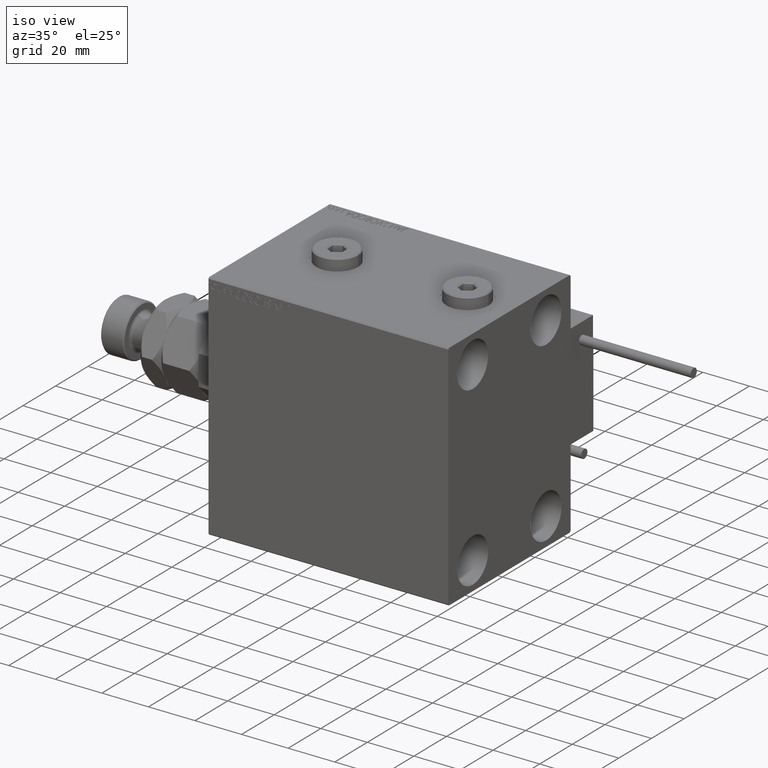
[diagram: clean part render]
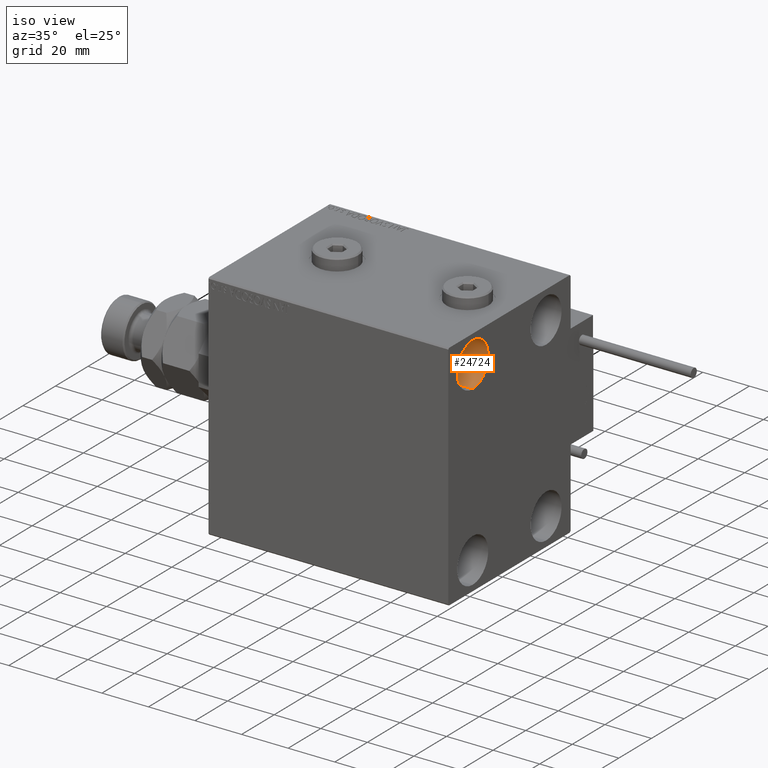
[diagram: same view with one face highlighted and labeled with its STEP entity id]
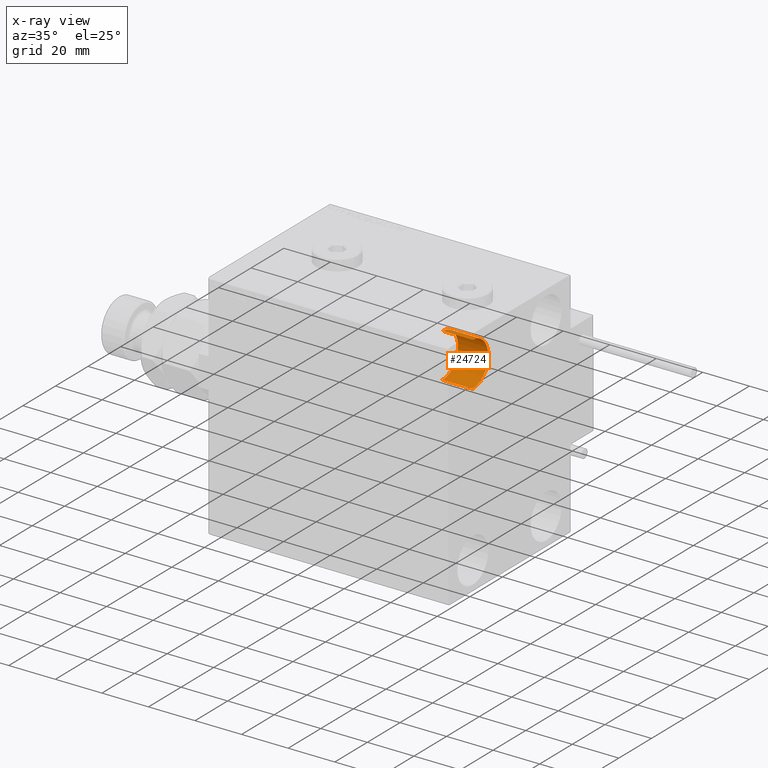
[diagram: x-ray of the same camera — body ghosted, the highlighted face saturated]
A machine part, iso view. The second image highlights one B-rep face of the part: STEP entity #24724.
The next image is the same camera in x-ray: the body ghosted, the highlighted face saturated — about 0% of this face is hidden behind the body in this view.
In plain terms, the highlighted cylindrical surface (edge-blend (fillet) strip) has radius 9.5 mm, axis along (1, 0, 0).
Its self-contained STEP definition (entity closure, byte-faithful):
#377 = CARTESIAN_POINT ( 'NONE',  ( 90.00000000000000000, -22.49999999999999645, 47.49999999999999289 ) ) ;
#1489 = CARTESIAN_POINT ( 'NONE',  ( 103.0000000000000000, -22.49999999999999645, 28.49999999999998934 ) ) ;
#2803 = AXIS2_PLACEMENT_3D ( 'NONE', #22909, #44461, #27475 ) ;
#4567 = VECTOR ( 'NONE', #12793, 1000.000000000000000 ) ;
#6557 = CARTESIAN_POINT ( 'NONE',  ( 90.00000000000000000, -22.49999999999999645, 37.99999999999999289 ) ) ;
#7466 = EDGE_CURVE ( 'NONE', #19817, #31301, #50160, .T. ) ;
#8175 = DIRECTION ( 'NONE',  ( 1.000000000000000000, -0.000000000000000000, -0.000000000000000000 ) ) ;
#8617 = EDGE_CURVE ( 'NONE', #34713, #38872, #45879, .T. ) ;
#8749 = EDGE_CURVE ( 'NONE', #34713, #19817, #29781, .T. ) ;
#11212 = DIRECTION ( 'NONE',  ( 0.000000000000000000, 0.000000000000000000, 1.000000000000000000 ) ) ;
#12793 = DIRECTION ( 'NONE',  ( 1.000000000000000000, -0.000000000000000000, -0.000000000000000000 ) ) ;
#13346 = ORIENTED_EDGE ( 'NONE', *, *, #8617, .T. ) ;
#14318 = AXIS2_PLACEMENT_3D ( 'NONE', #6557, #44306, #36201 ) ;
#14926 = CYLINDRICAL_SURFACE ( 'NONE', #14318, 9.500000000000001776 ) ;
#16305 = DIRECTION ( 'NONE',  ( -1.000000000000000000, -0.000000000000000000, -0.000000000000000000 ) ) ;
#17478 = ORIENTED_EDGE ( 'NONE', *, *, #8749, .F. ) ;
#19817 = VERTEX_POINT ( 'NONE', #44982 ) ;
#19943 = CARTESIAN_POINT ( 'NONE',  ( 90.00000000000000000, -22.49999999999999645, 28.49999999999998934 ) ) ;
#22909 = CARTESIAN_POINT ( 'NONE',  ( 103.0000000000000000, -22.49999999999999645, 37.99999999999999289 ) ) ;
#24724 = ADVANCED_FACE ( 'NONE', ( #43511 ), #14926, .F. ) ;
#27475 = DIRECTION ( 'NONE',  ( 0.000000000000000000, 0.000000000000000000, 1.000000000000000000 ) ) ;
#28184 = CARTESIAN_POINT ( 'NONE',  ( 90.00000000000000000, -22.49999999999999645, 37.99999999999999289 ) ) ;
#29781 = LINE ( 'NONE', #377, #4567 ) ;
#31301 = VERTEX_POINT ( 'NONE', #1489 ) ;
#31940 = CARTESIAN_POINT ( 'NONE',  ( 90.00000000000000000, -22.49999999999999645, 28.49999999999998934 ) ) ;
#33039 = EDGE_CURVE ( 'NONE', #38872, #31301, #44601, .T. ) ;
#34713 = VERTEX_POINT ( 'NONE', #45796 ) ;
#36201 = DIRECTION ( 'NONE',  ( 0.000000000000000000, 0.000000000000000000, -1.000000000000000000 ) ) ;
#36398 = AXIS2_PLACEMENT_3D ( 'NONE', #28184, #16305, #11212 ) ;
#36403 = ORIENTED_EDGE ( 'NONE', *, *, #33039, .T. ) ;
#38872 = VERTEX_POINT ( 'NONE', #19943 ) ;
#39446 = VECTOR ( 'NONE', #8175, 1000.000000000000000 ) ;
#43511 = FACE_OUTER_BOUND ( 'NONE', #50005, .T. ) ;
#44306 = DIRECTION ( 'NONE',  ( 1.000000000000000000, -0.000000000000000000, -0.000000000000000000 ) ) ;
#44313 = ORIENTED_EDGE ( 'NONE', *, *, #7466, .F. ) ;
#44461 = DIRECTION ( 'NONE',  ( -1.000000000000000000, -0.000000000000000000, -0.000000000000000000 ) ) ;
#44601 = LINE ( 'NONE', #31940, #39446 ) ;
#44982 = CARTESIAN_POINT ( 'NONE',  ( 103.0000000000000000, -22.49999999999999645, 47.49999999999999289 ) ) ;
#45796 = CARTESIAN_POINT ( 'NONE',  ( 90.00000000000000000, -22.49999999999999645, 47.49999999999999289 ) ) ;
#45879 = CIRCLE ( 'NONE', #36398, 9.500000000000001776 ) ;
#50005 = EDGE_LOOP ( 'NONE', ( #17478, #13346, #36403, #44313 ) ) ;
#50160 = CIRCLE ( 'NONE', #2803, 9.500000000000001776 ) ;